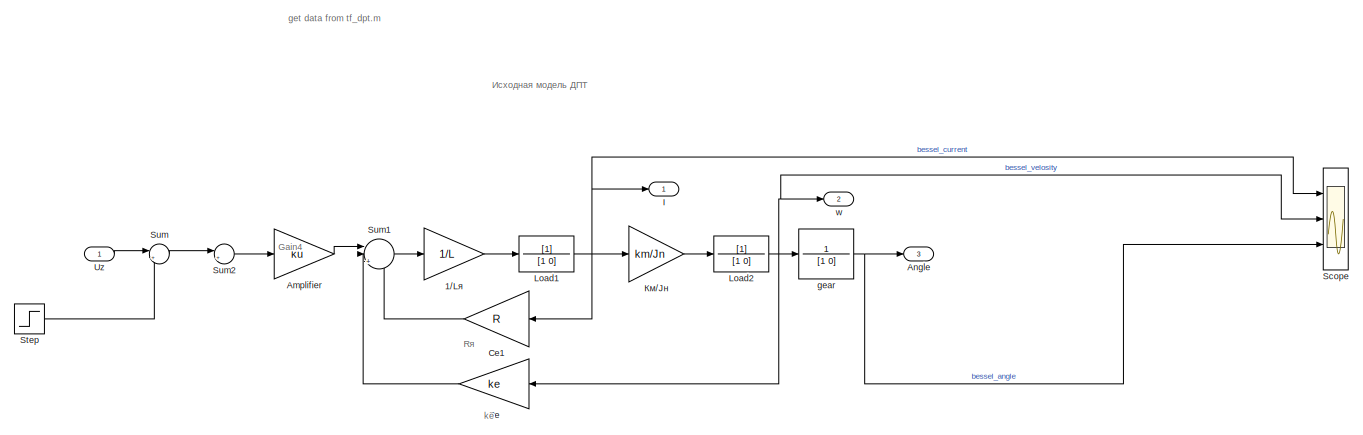
[diagram: root canvas - part 1/5, full width, top band]
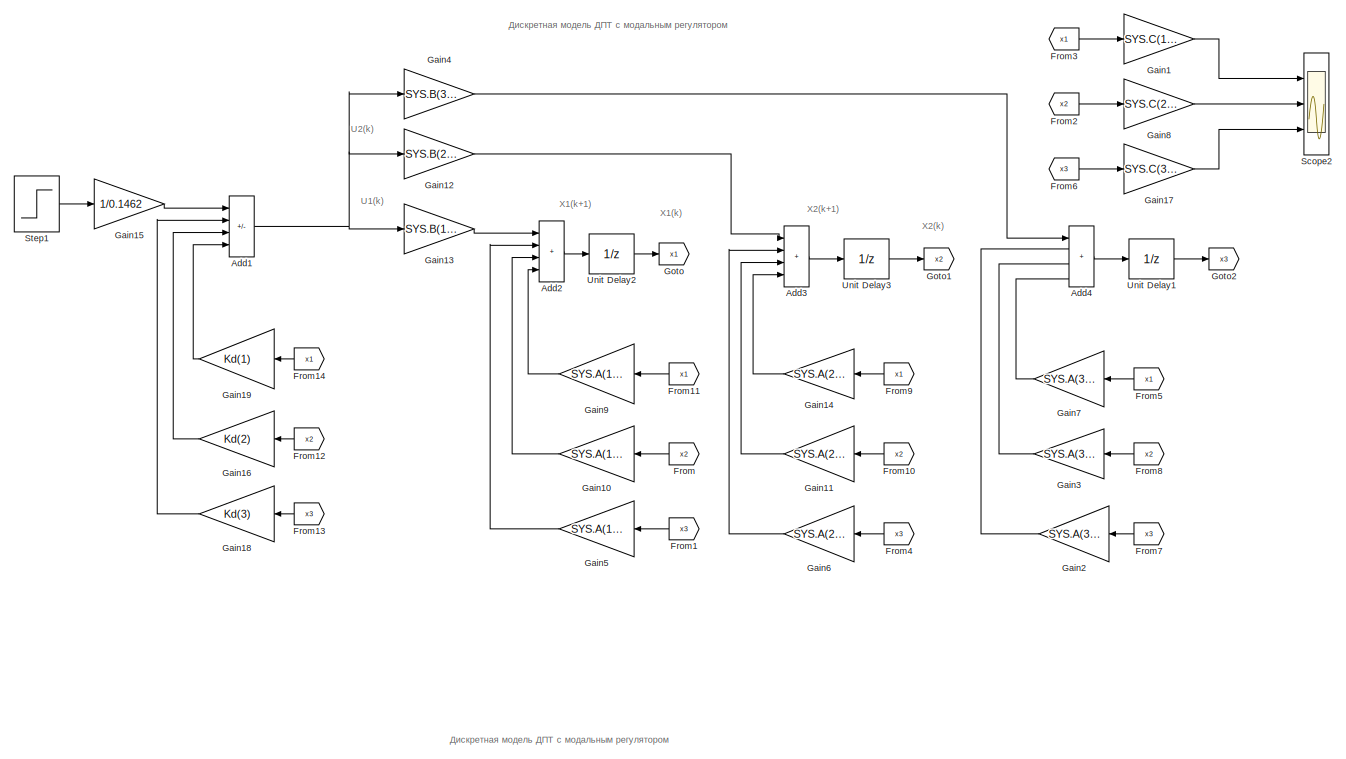
[diagram: root canvas - part 2/5, full width, top band]
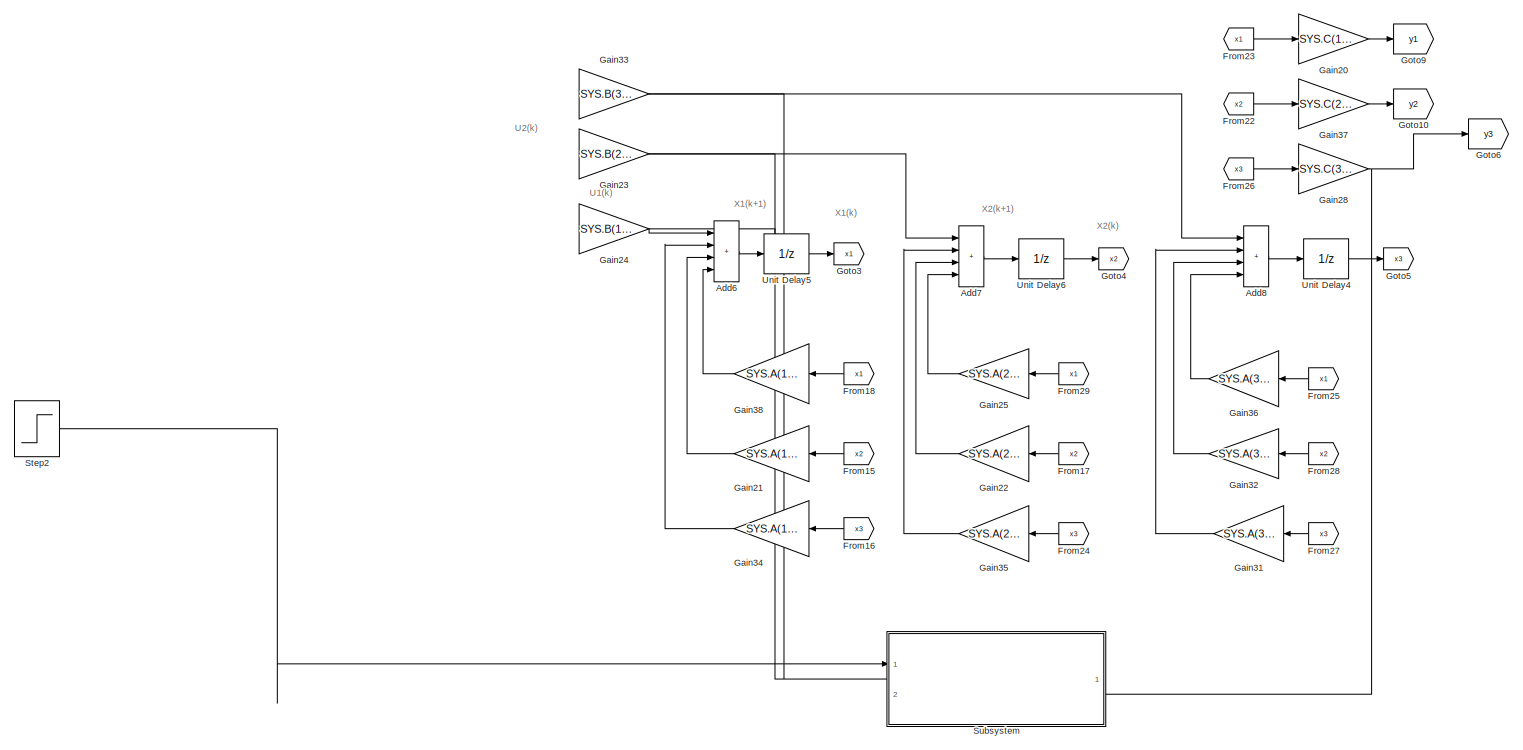
[diagram: root canvas - part 3/5, full width, middle band]
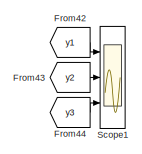
[diagram: root canvas - part 4/5, middle right region]
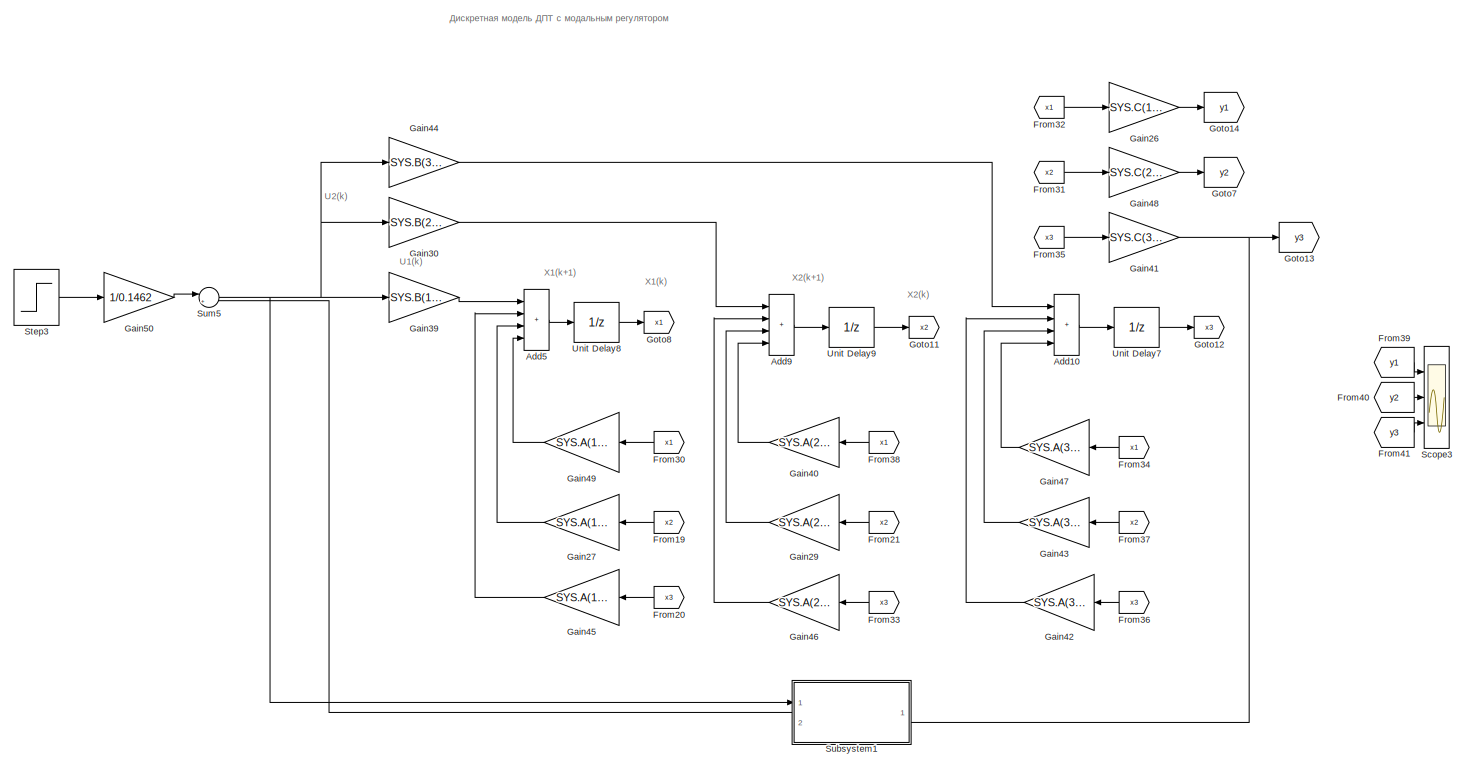
[diagram: root canvas - part 5/5, full width, bottom band]
MODEL slx_e2567f27fadd
KIND model
CONFIG AbsTol = auto
CONFIG EnableMultiTasking = off
CONFIG FixedStep = auto
CONFIG MaxStep = auto
CONFIG MinStep = auto
CONFIG RelTol = 1e-3
CONFIG SampleTimeConstraint = Unconstrained
CONFIG SolverName = VariableStepAuto
CONFIG StartTime = 0.0
CONFIG StopTime = 0.2
BLOCK [Gain] 1//Lя
  Commented = on
  Gain = 1/L
BLOCK [Sum] Add1
  Commented = on
  IconShape = rectangular
  Inputs = +---
  Ports = [4, 1]
BLOCK [Sum] Add10
  IconShape = rectangular
  Inputs = ++++
  Ports = [4, 1]
BLOCK [Sum] Add2
  Commented = on
  IconShape = rectangular
  Inputs = ++++
  Ports = [4, 1]
BLOCK [Sum] Add3
  Commented = on
  IconShape = rectangular
  Inputs = ++++
  Ports = [4, 1]
BLOCK [Sum] Add4
  Commented = on
  IconShape = rectangular
  Inputs = ++++
  Ports = [4, 1]
BLOCK [Sum] Add5
  IconShape = rectangular
  Inputs = ++++
  Ports = [4, 1]
BLOCK [Sum] Add6
  Commented = on
  IconShape = rectangular
  Inputs = ++++
  Ports = [4, 1]
BLOCK [Sum] Add7
  Commented = on
  IconShape = rectangular
  Inputs = ++++
  Ports = [4, 1]
BLOCK [Sum] Add8
  Commented = on
  IconShape = rectangular
  Inputs = ++++
  Ports = [4, 1]
BLOCK [Sum] Add9
  IconShape = rectangular
  Inputs = ++++
  Ports = [4, 1]
BLOCK [Gain] Amplifier
  Commented = on
  Gain = ku
BLOCK [Outport] Angle
  Port = 3
BLOCK [Gain] Ce
  Commented = on
  Gain = ke
BLOCK [Gain] Ce1
  Commented = on
  Gain = R
BLOCK [From] From
  Commented = on
  GotoTag = x2
  NameLocation = top
BLOCK [From] From1
  Commented = on
  GotoTag = x3
  NameLocation = top
BLOCK [From] From10
  Commented = on
  GotoTag = x2
  NameLocation = top
BLOCK [From] From11
  Commented = on
  GotoTag = x1
  NameLocation = top
BLOCK [From] From12
  Commented = on
  GotoTag = x2
  NameLocation = top
BLOCK [From] From13
  Commented = on
  GotoTag = x3
  NameLocation = top
BLOCK [From] From14
  Commented = on
  GotoTag = x1
  NameLocation = top
BLOCK [From] From15
  Commented = on
  GotoTag = x2
  NameLocation = top
BLOCK [From] From16
  Commented = on
  GotoTag = x3
  NameLocation = top
BLOCK [From] From17
  Commented = on
  GotoTag = x2
  NameLocation = top
BLOCK [From] From18
  Commented = on
  GotoTag = x1
  NameLocation = top
BLOCK [From] From19
  GotoTag = x2
  NameLocation = top
BLOCK [From] From2
  Commented = on
  GotoTag = x2
BLOCK [From] From20
  GotoTag = x3
  NameLocation = top
BLOCK [From] From21
  GotoTag = x2
  NameLocation = top
BLOCK [From] From22
  Commented = on
  GotoTag = x2
BLOCK [From] From23
  Commented = on
  GotoTag = x1
BLOCK [From] From24
  Commented = on
  GotoTag = x3
  NameLocation = top
BLOCK [From] From25
  Commented = on
  GotoTag = x1
  NameLocation = top
BLOCK [From] From26
  Commented = on
  GotoTag = x3
BLOCK [From] From27
  Commented = on
  GotoTag = x3
  NameLocation = top
BLOCK [From] From28
  Commented = on
  GotoTag = x2
  NameLocation = top
BLOCK [From] From29
  Commented = on
  GotoTag = x1
  NameLocation = top
BLOCK [From] From3
  Commented = on
  GotoTag = x1
BLOCK [From] From30
  GotoTag = x1
  NameLocation = top
BLOCK [From] From31
  GotoTag = x2
BLOCK [From] From32
  GotoTag = x1
BLOCK [From] From33
  GotoTag = x3
  NameLocation = top
BLOCK [From] From34
  GotoTag = x1
  NameLocation = top
BLOCK [From] From35
  GotoTag = x3
BLOCK [From] From36
  GotoTag = x3
  NameLocation = top
BLOCK [From] From37
  GotoTag = x2
  NameLocation = top
BLOCK [From] From38
  GotoTag = x1
  NameLocation = top
BLOCK [From] From39
  GotoTag = y1
BLOCK [From] From4
  Commented = on
  GotoTag = x3
  NameLocation = top
BLOCK [From] From40
  GotoTag = y2
BLOCK [From] From41
  GotoTag = y3
BLOCK [From] From42
  Commented = on
  GotoTag = y1
BLOCK [From] From43
  Commented = on
  GotoTag = y2
BLOCK [From] From44
  Commented = on
  GotoTag = y3
BLOCK [From] From5
  Commented = on
  GotoTag = x1
  NameLocation = top
BLOCK [From] From6
  Commented = on
  GotoTag = x3
BLOCK [From] From7
  Commented = on
  GotoTag = x3
  NameLocation = top
BLOCK [From] From8
  Commented = on
  GotoTag = x2
  NameLocation = top
BLOCK [From] From9
  Commented = on
  GotoTag = x1
  NameLocation = top
BLOCK [Gain] Gain1
  Commented = on
  Gain = SYS.C(1,1)
BLOCK [Gain] Gain10
  Commented = on
  Gain = SYS.A(1,2)
BLOCK [Gain] Gain11
  Commented = on
  Gain = SYS.A(2,2)
BLOCK [Gain] Gain12
  Commented = on
  Gain = SYS.B(2,1)
BLOCK [Gain] Gain13
  Commented = on
  Gain = SYS.B(1,1)
BLOCK [Gain] Gain14
  Commented = on
  Gain = SYS.A(2,1)
  NameLocation = top
BLOCK [Gain] Gain15
  Commented = on
  Gain = 1/0.1462
BLOCK [Gain] Gain16
  Commented = on
  Gain = Kd(2)
BLOCK [Gain] Gain17
  Commented = on
  Gain = SYS.C(3,3)
BLOCK [Gain] Gain18
  Commented = on
  Gain = Kd(3)
BLOCK [Gain] Gain19
  Commented = on
  Gain = Kd(1)
BLOCK [Gain] Gain2
  Commented = on
  Gain = SYS.A(3,3)
BLOCK [Gain] Gain20
  Commented = on
  Gain = SYS.C(1,1)
BLOCK [Gain] Gain21
  Commented = on
  Gain = SYS.A(1,2)
BLOCK [Gain] Gain22
  Commented = on
  Gain = SYS.A(2,2)
BLOCK [Gain] Gain23
  Commented = on
  Gain = SYS.B(2,1)
BLOCK [Gain] Gain24
  Commented = on
  Gain = SYS.B(1,1)
BLOCK [Gain] Gain25
  Commented = on
  Gain = SYS.A(2,1)
  NameLocation = top
BLOCK [Gain] Gain26
  Gain = SYS.C(1,1)
BLOCK [Gain] Gain27
  Gain = SYS.A(1,2)
BLOCK [Gain] Gain28
  Commented = on
  Gain = SYS.C(3,3)
BLOCK [Gain] Gain29
  Gain = SYS.A(2,2)
BLOCK [Gain] Gain3
  Commented = on
  Gain = SYS.A(3,2)
  NameLocation = top
BLOCK [Gain] Gain30
  Gain = SYS.B(2,1)
BLOCK [Gain] Gain31
  Commented = on
  Gain = SYS.A(3,3)
BLOCK [Gain] Gain32
  Commented = on
  Gain = SYS.A(3,2)
  NameLocation = top
BLOCK [Gain] Gain33
  Commented = on
  Gain = SYS.B(3,1)
BLOCK [Gain] Gain34
  Commented = on
  Gain = SYS.A(1,3)
BLOCK [Gain] Gain35
  Commented = on
  Gain = SYS.A(2,3)
BLOCK [Gain] Gain36
  Commented = on
  Gain = SYS.A(3,1)
BLOCK [Gain] Gain37
  Commented = on
  Gain = SYS.C(2,2)
BLOCK [Gain] Gain38
  Commented = on
  Gain = SYS.A(1,1)
BLOCK [Gain] Gain39
  Gain = SYS.B(1,1)
BLOCK [Gain] Gain4
  Commented = on
  Gain = SYS.B(3,1)
BLOCK [Gain] Gain40
  Gain = SYS.A(2,1)
  NameLocation = top
BLOCK [Gain] Gain41
  Gain = SYS.C(3,3)
BLOCK [Gain] Gain42
  Gain = SYS.A(3,3)
BLOCK [Gain] Gain43
  Gain = SYS.A(3,2)
  NameLocation = top
BLOCK [Gain] Gain44
  Gain = SYS.B(3,1)
BLOCK [Gain] Gain45
  Gain = SYS.A(1,3)
BLOCK [Gain] Gain46
  Gain = SYS.A(2,3)
BLOCK [Gain] Gain47
  Gain = SYS.A(3,1)
BLOCK [Gain] Gain48
  Gain = SYS.C(2,2)
BLOCK [Gain] Gain49
  Gain = SYS.A(1,1)
BLOCK [Gain] Gain5
  Commented = on
  Gain = SYS.A(1,3)
BLOCK [Gain] Gain50
  Gain = 1/0.1462
BLOCK [Gain] Gain6
  Commented = on
  Gain = SYS.A(2,3)
BLOCK [Gain] Gain7
  Commented = on
  Gain = SYS.A(3,1)
BLOCK [Gain] Gain8
  Commented = on
  Gain = SYS.C(2,2)
BLOCK [Gain] Gain9
  Commented = on
  Gain = SYS.A(1,1)
BLOCK [Goto] Goto
  Commented = on
  GotoTag = x1
BLOCK [Goto] Goto1
  Commented = on
  GotoTag = x2
BLOCK [Goto] Goto10
  Commented = on
  GotoTag = y2
BLOCK [Goto] Goto11
  GotoTag = x2
BLOCK [Goto] Goto12
  GotoTag = x3
BLOCK [Goto] Goto13
  GotoTag = y3
BLOCK [Goto] Goto14
  GotoTag = y1
BLOCK [Goto] Goto2
  Commented = on
  GotoTag = x3
BLOCK [Goto] Goto3
  Commented = on
  GotoTag = x1
BLOCK [Goto] Goto4
  Commented = on
  GotoTag = x2
BLOCK [Goto] Goto5
  Commented = on
  GotoTag = x3
BLOCK [Goto] Goto6
  Commented = on
  GotoTag = y3
BLOCK [Goto] Goto7
  GotoTag = y2
BLOCK [Goto] Goto8
  GotoTag = x1
BLOCK [Goto] Goto9
  Commented = on
  GotoTag = y1
BLOCK [Outport] I
BLOCK [TransferFcn] Load1
  Commented = on
  Denominator = [1 0]
BLOCK [TransferFcn] Load2
  Commented = on
  Denominator = [1 0]
BLOCK [Scope] Scope
  Commented = on
  Floating = off
  NumInputPorts = 3
  Ports = [3]
  ScopeSpecificationString = Simulink.scopes.TimeScopeBlockCfg('CurrentConfiguration', extmgr.ConfigurationSet(extmgr.Configuration('Core','General UI',true,'FigureColor',[1 1 1]),extmgr.Configuration('Core','Source UI',true),extmgr.Configuration('Sources','WiredSimulink',true),extmgr.Configuration('Visuals','Time Domain',true,'SerializedDisplays',{struct('MinYLimReal','-0.22842','MaxYLimReal','2.05579','YLabelReal','','MinYL...<+3602ch>
BLOCK [Scope] Scope1
  Commented = on
  Floating = off
  NumInputPorts = 3
  Ports = [3]
  ScopeSpecificationString = Simulink.scopes.TimeScopeBlockCfg('CurrentConfiguration', extmgr.ConfigurationSet(extmgr.Configuration('Core','General UI',true,'FigureColor',[1 1 1]),extmgr.Configuration('Core','Source UI',true),extmgr.Configuration('Sources','WiredSimulink',true,'DataLoggingVariableName','ScopeData1'),extmgr.Configuration('Visuals','Time Domain',true,'SerializedDisplays',{struct('MinYLimReal','-5.29936','MaxYLi...<+3636ch>
BLOCK [Scope] Scope2
  Commented = on
  Floating = off
  NumInputPorts = 3
  Ports = [3]
  ScopeSpecificationString = Simulink.scopes.TimeScopeBlockCfg('CurrentConfiguration', extmgr.ConfigurationSet(extmgr.Configuration('Core','General UI',true,'FigureColor',[1 1 1]),extmgr.Configuration('Core','Source UI',true),extmgr.Configuration('Sources','WiredSimulink',true,'DataLoggingVariableName','ScopeData2'),extmgr.Configuration('Visuals','Time Domain',true,'SerializedDisplays',{struct('MinYLimReal','-5.29936','MaxYLi...<+3634ch>
BLOCK [Scope] Scope3
  Floating = off
  NumInputPorts = 3
  Ports = [3]
  ScopeSpecificationString = Simulink.scopes.TimeScopeBlockCfg('CurrentConfiguration', extmgr.ConfigurationSet(extmgr.Configuration('Core','General UI',true,'FigureColor',[1 1 1]),extmgr.Configuration('Core','Source UI',true),extmgr.Configuration('Sources','WiredSimulink',true,'DataLoggingVariableName','ScopeData2'),extmgr.Configuration('Visuals','Time Domain',true,'SerializedDisplays',{struct('MinYLimReal','-5.29936','MaxYLi...<+3610ch>
BLOCK [Step] Step
  Commented = on
  SampleTime = 0
  Time = 0
BLOCK [Step] Step1
  Commented = on
  SampleTime = 0
  Time = 0
BLOCK [Step] Step2
  Commented = on
  SampleTime = 0
  Time = 0
BLOCK [Step] Step3
  SampleTime = 0
  Time = 0
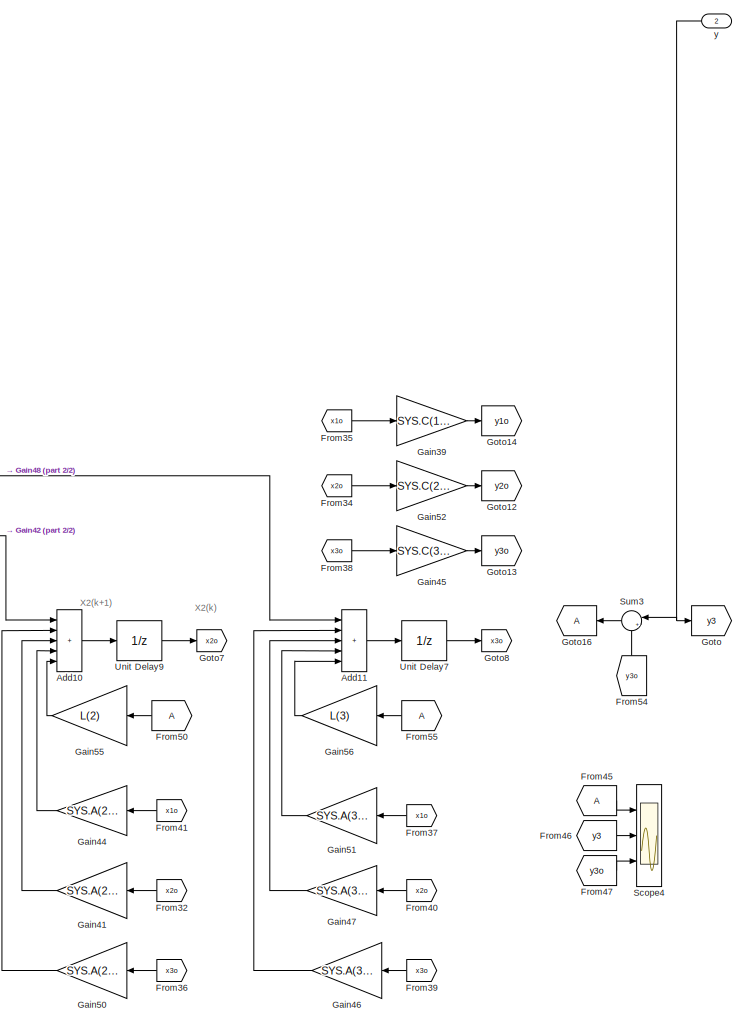
[diagram: Subsystem - part 1/2, right side, full height]
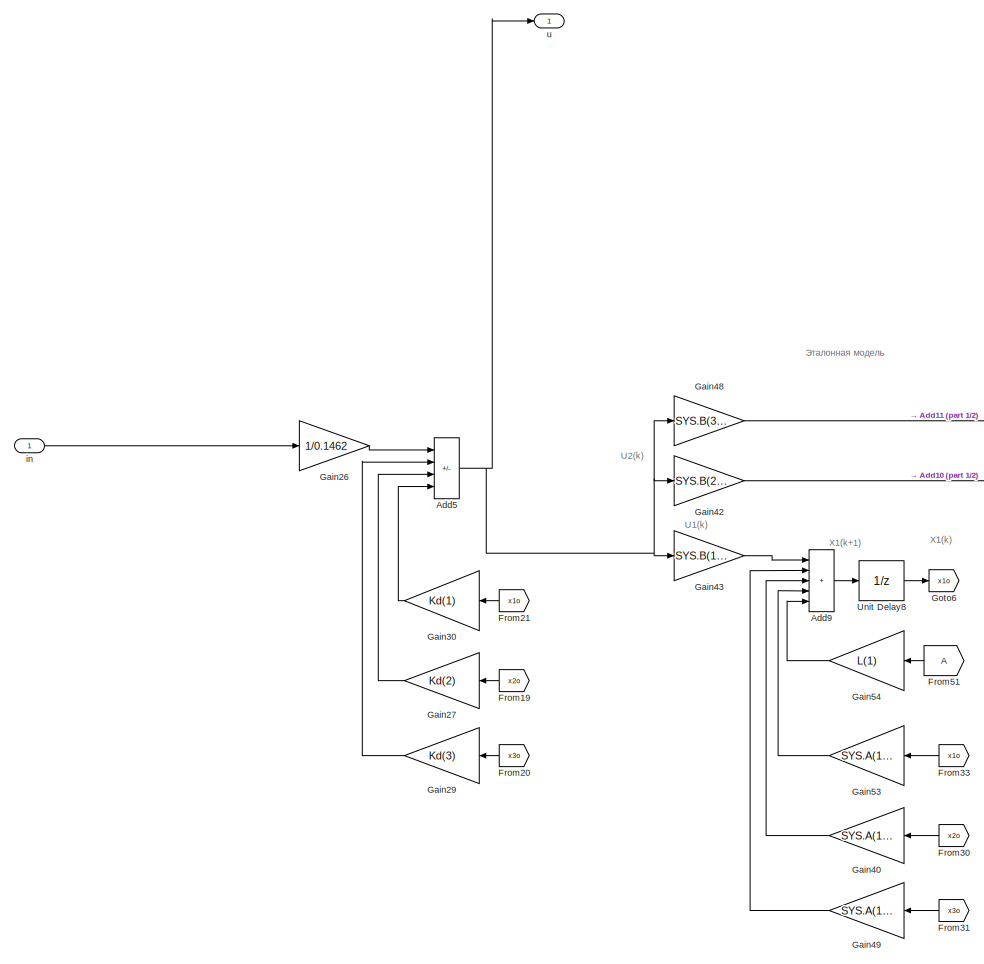
[diagram: Subsystem - part 2/2, left side, full height]
BLOCK [SubSystem] Subsystem
  Commented = on
  PortSchema = {"entries":[{"content":{"sides":[{"content":{"connectorIds":["Out1","In1"]},"type":"ConnectorPlacement.EquallySpacedRectSide","uuid":"1ae5a343-437d-4cb9-9822-e2db9fa7010c"},{"content":{"connectorIds":["In2"],"side":"RIGHT"},"type":"ConnectorPlacement.EquallySpacedRectSide","uuid":"a13fd255-885b-49a4-bdfe-42517e7d2bb6"},{"content":{"connectorIds":[],"side":"TOP"},"type":"ConnectorPlacement.EquallyS...<+246ch>
  Ports = [2, 1]
  RequestExecContextInheritance = off
BLOCK [Sum] Subsystem/Add10
  IconShape = rectangular
  Inputs = +++++
  Ports = [5, 1]
BLOCK [Sum] Subsystem/Add11
  IconShape = rectangular
  Inputs = +++++
  Ports = [5, 1]
BLOCK [Sum] Subsystem/Add5
  IconShape = rectangular
  Inputs = +---
  Ports = [4, 1]
BLOCK [Sum] Subsystem/Add9
  IconShape = rectangular
  Inputs = +++++
  Ports = [5, 1]
BLOCK [From] Subsystem/From19
  GotoTag = x2o
  NameLocation = top
BLOCK [From] Subsystem/From20
  GotoTag = x3o
  NameLocation = top
BLOCK [From] Subsystem/From21
  GotoTag = x1o
  NameLocation = top
BLOCK [From] Subsystem/From30
  GotoTag = x2o
  NameLocation = top
BLOCK [From] Subsystem/From31
  GotoTag = x3o
  NameLocation = top
BLOCK [From] Subsystem/From32
  GotoTag = x2o
  NameLocation = top
BLOCK [From] Subsystem/From33
  GotoTag = x1o
  NameLocation = top
BLOCK [From] Subsystem/From34
  GotoTag = x2o
BLOCK [From] Subsystem/From35
  GotoTag = x1o
BLOCK [From] Subsystem/From36
  GotoTag = x3o
  NameLocation = top
BLOCK [From] Subsystem/From37
  GotoTag = x1o
  NameLocation = top
BLOCK [From] Subsystem/From38
  GotoTag = x3o
BLOCK [From] Subsystem/From39
  GotoTag = x3o
  NameLocation = top
BLOCK [From] Subsystem/From40
  GotoTag = x2o
  NameLocation = top
BLOCK [From] Subsystem/From41
  GotoTag = x1o
  NameLocation = top
BLOCK [From] Subsystem/From45
  NameLocation = top
BLOCK [From] Subsystem/From46
  GotoTag = y3
BLOCK [From] Subsystem/From47
  GotoTag = y3o
BLOCK [From] Subsystem/From50
BLOCK [From] Subsystem/From51
BLOCK [From] Subsystem/From54
  GotoTag = y3o
  NameLocation = right
BLOCK [From] Subsystem/From55
BLOCK [Gain] Subsystem/Gain26
  Gain = 1/0.1462
BLOCK [Gain] Subsystem/Gain27
  Gain = Kd(2)
BLOCK [Gain] Subsystem/Gain29
  Gain = Kd(3)
BLOCK [Gain] Subsystem/Gain30
  Gain = Kd(1)
BLOCK [Gain] Subsystem/Gain39
  Gain = SYS.C(1,1)
BLOCK [Gain] Subsystem/Gain40
  Gain = SYS.A(1,2)
BLOCK [Gain] Subsystem/Gain41
  Gain = SYS.A(2,2)
BLOCK [Gain] Subsystem/Gain42
  Gain = SYS.B(2,1)
BLOCK [Gain] Subsystem/Gain43
  Gain = SYS.B(1,1)
BLOCK [Gain] Subsystem/Gain44
  Gain = SYS.A(2,1)
  NameLocation = top
BLOCK [Gain] Subsystem/Gain45
  Gain = SYS.C(3,3)
BLOCK [Gain] Subsystem/Gain46
  Gain = SYS.A(3,3)
BLOCK [Gain] Subsystem/Gain47
  Gain = SYS.A(3,2)
  NameLocation = top
BLOCK [Gain] Subsystem/Gain48
  Gain = SYS.B(3,1)
BLOCK [Gain] Subsystem/Gain49
  Gain = SYS.A(1,3)
BLOCK [Gain] Subsystem/Gain50
  Gain = SYS.A(2,3)
BLOCK [Gain] Subsystem/Gain51
  Gain = SYS.A(3,1)
BLOCK [Gain] Subsystem/Gain52
  Gain = SYS.C(2,2)
BLOCK [Gain] Subsystem/Gain53
  Gain = SYS.A(1,1)
BLOCK [Gain] Subsystem/Gain54
  Gain = L(1)
BLOCK [Gain] Subsystem/Gain55
  Gain = L(2)
BLOCK [Gain] Subsystem/Gain56
  Gain = L(3)
BLOCK [Goto] Subsystem/Goto
  GotoTag = y3
BLOCK [Goto] Subsystem/Goto12
  GotoTag = y2o
BLOCK [Goto] Subsystem/Goto13
  GotoTag = y3o
BLOCK [Goto] Subsystem/Goto14
  GotoTag = y1o
BLOCK [Goto] Subsystem/Goto16
  NameLocation = top
BLOCK [Goto] Subsystem/Goto6
  GotoTag = x1o
BLOCK [Goto] Subsystem/Goto7
  GotoTag = x2o
BLOCK [Goto] Subsystem/Goto8
  GotoTag = x3o
BLOCK [Scope] Subsystem/Scope4
  Floating = off
  NumInputPorts = 3
  Ports = [3]
  ScopeSpecificationString = Simulink.scopes.TimeScopeBlockCfg('CurrentConfiguration', extmgr.ConfigurationSet(extmgr.Configuration('Core','General UI',true,'FigureColor',[1 1 1]),extmgr.Configuration('Core','Source UI',true),extmgr.Configuration('Sources','WiredSimulink',true,'DataLoggingVariableName','ScopeData1'),extmgr.Configuration('Visuals','Time Domain',true,'SerializedDisplays',{struct('MinYLimReal','-1.00000','MaxYLi...<+3650ch>
BLOCK [Sum] Subsystem/Sum3
  Inputs = |+-
  NameLocation = top
  Ports = [2, 1]
BLOCK [UnitDelay] Subsystem/Unit Delay7
  HasFrameUpgradeWarning = on
  SampleTime = Ts
BLOCK [UnitDelay] Subsystem/Unit Delay8
  HasFrameUpgradeWarning = on
  SampleTime = Ts
BLOCK [UnitDelay] Subsystem/Unit Delay9
  HasFrameUpgradeWarning = on
  SampleTime = Ts
BLOCK [Inport] Subsystem/in
BLOCK [Outport] Subsystem/u
BLOCK [Inport] Subsystem/y
  Port = 2
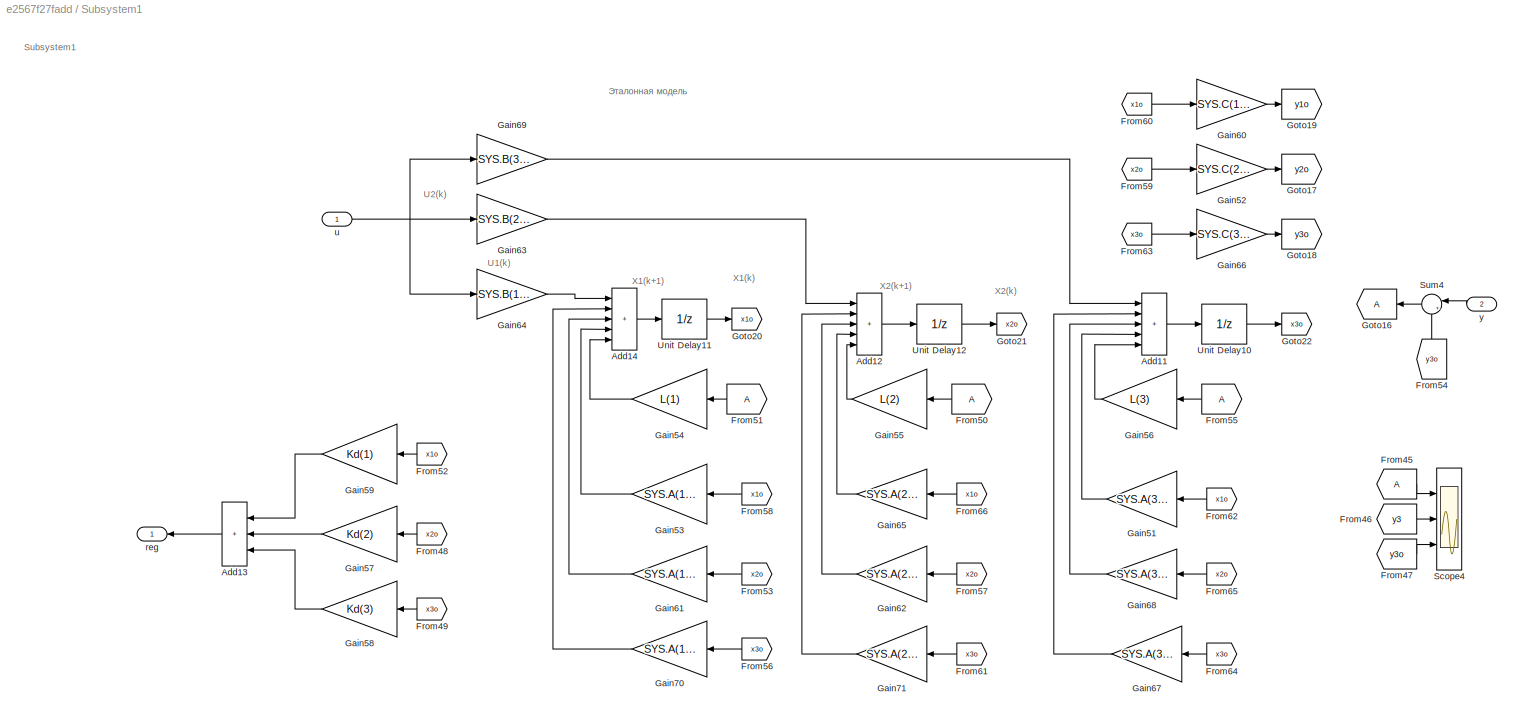
BLOCK [SubSystem] Subsystem1
  PortSchema = {"entries":[{"content":{"sides":[{"content":{"connectorIds":["In1","Out1"]},"type":"ConnectorPlacement.EquallySpacedRectSide","uuid":"1ae5a343-437d-4cb9-9822-e2db9fa7010c"},{"content":{"connectorIds":["In2"],"side":"RIGHT"},"type":"ConnectorPlacement.EquallySpacedRectSide","uuid":"a13fd255-885b-49a4-bdfe-42517e7d2bb6"},{"content":{"connectorIds":[],"side":"TOP"},"type":"ConnectorPlacement.EquallyS...<+246ch>
  Ports = [2, 1]
  RequestExecContextInheritance = off
BLOCK [Sum] Subsystem1/Add11
  IconShape = rectangular
  Inputs = +++++
  Ports = [5, 1]
BLOCK [Sum] Subsystem1/Add12
  IconShape = rectangular
  Inputs = +++++
  Ports = [5, 1]
BLOCK [Sum] Subsystem1/Add13
  IconShape = rectangular
  Inputs = +++
  NameLocation = top
  Ports = [3, 1]
BLOCK [Sum] Subsystem1/Add14
  IconShape = rectangular
  Inputs = +++++
  Ports = [5, 1]
BLOCK [From] Subsystem1/From45
  NameLocation = top
BLOCK [From] Subsystem1/From46
  GotoTag = y3
BLOCK [From] Subsystem1/From47
  GotoTag = y3o
BLOCK [From] Subsystem1/From48
  GotoTag = x2o
  NameLocation = top
BLOCK [From] Subsystem1/From49
  GotoTag = x3o
  NameLocation = top
BLOCK [From] Subsystem1/From50
BLOCK [From] Subsystem1/From51
BLOCK [From] Subsystem1/From52
  GotoTag = x1o
  NameLocation = top
BLOCK [From] Subsystem1/From53
  GotoTag = x2o
  NameLocation = top
BLOCK [From] Subsystem1/From54
  GotoTag = y3o
  NameLocation = right
BLOCK [From] Subsystem1/From55
BLOCK [From] Subsystem1/From56
  GotoTag = x3o
  NameLocation = top
BLOCK [From] Subsystem1/From57
  GotoTag = x2o
  NameLocation = top
BLOCK [From] Subsystem1/From58
  GotoTag = x1o
  NameLocation = top
BLOCK [From] Subsystem1/From59
  GotoTag = x2o
BLOCK [From] Subsystem1/From60
  GotoTag = x1o
BLOCK [From] Subsystem1/From61
  GotoTag = x3o
  NameLocation = top
BLOCK [From] Subsystem1/From62
  GotoTag = x1o
  NameLocation = top
BLOCK [From] Subsystem1/From63
  GotoTag = x3o
BLOCK [From] Subsystem1/From64
  GotoTag = x3o
  NameLocation = top
BLOCK [From] Subsystem1/From65
  GotoTag = x2o
  NameLocation = top
BLOCK [From] Subsystem1/From66
  GotoTag = x1o
  NameLocation = top
BLOCK [Gain] Subsystem1/Gain51
  Gain = SYS.A(3,1)
BLOCK [Gain] Subsystem1/Gain52
  Gain = SYS.C(2,2)
BLOCK [Gain] Subsystem1/Gain53
  Gain = SYS.A(1,1)
BLOCK [Gain] Subsystem1/Gain54
  Gain = L(1)
BLOCK [Gain] Subsystem1/Gain55
  Gain = L(2)
BLOCK [Gain] Subsystem1/Gain56
  Gain = L(3)
BLOCK [Gain] Subsystem1/Gain57
  Gain = Kd(2)
BLOCK [Gain] Subsystem1/Gain58
  Gain = Kd(3)
BLOCK [Gain] Subsystem1/Gain59
  Gain = Kd(1)
BLOCK [Gain] Subsystem1/Gain60
  Gain = SYS.C(1,1)
BLOCK [Gain] Subsystem1/Gain61
  Gain = SYS.A(1,2)
BLOCK [Gain] Subsystem1/Gain62
  Gain = SYS.A(2,2)
BLOCK [Gain] Subsystem1/Gain63
  Gain = SYS.B(2,1)
BLOCK [Gain] Subsystem1/Gain64
  Gain = SYS.B(1,1)
BLOCK [Gain] Subsystem1/Gain65
  Gain = SYS.A(2,1)
  NameLocation = top
BLOCK [Gain] Subsystem1/Gain66
  Gain = SYS.C(3,3)
BLOCK [Gain] Subsystem1/Gain67
  Gain = SYS.A(3,3)
BLOCK [Gain] Subsystem1/Gain68
  Gain = SYS.A(3,2)
  NameLocation = top
BLOCK [Gain] Subsystem1/Gain69
  Gain = SYS.B(3,1)
BLOCK [Gain] Subsystem1/Gain70
  Gain = SYS.A(1,3)
BLOCK [Gain] Subsystem1/Gain71
  Gain = SYS.A(2,3)
BLOCK [Goto] Subsystem1/Goto16
  NameLocation = top
BLOCK [Goto] Subsystem1/Goto17
  GotoTag = y2o
BLOCK [Goto] Subsystem1/Goto18
  GotoTag = y3o
BLOCK [Goto] Subsystem1/Goto19
  GotoTag = y1o
BLOCK [Goto] Subsystem1/Goto20
  GotoTag = x1o
BLOCK [Goto] Subsystem1/Goto21
  GotoTag = x2o
BLOCK [Goto] Subsystem1/Goto22
  GotoTag = x3o
BLOCK [Scope] Subsystem1/Scope4
  Floating = off
  NumInputPorts = 3
  Ports = [3]
  ScopeSpecificationString = Simulink.scopes.TimeScopeBlockCfg('CurrentConfiguration', extmgr.ConfigurationSet(extmgr.Configuration('Core','General UI',true,'FigureColor',[1 1 1]),extmgr.Configuration('Core','Source UI',true),extmgr.Configuration('Sources','WiredSimulink',true,'DataLoggingVariableName','ScopeData1'),extmgr.Configuration('Visuals','Time Domain',true,'SerializedDisplays',{struct('MinYLimReal','-1.00000','MaxYLi...<+3650ch>
BLOCK [Sum] Subsystem1/Sum4
  Inputs = |+-
  NameLocation = top
  Ports = [2, 1]
BLOCK [UnitDelay] Subsystem1/Unit Delay10
  HasFrameUpgradeWarning = on
  SampleTime = Ts
BLOCK [UnitDelay] Subsystem1/Unit Delay11
  HasFrameUpgradeWarning = on
  SampleTime = Ts
BLOCK [UnitDelay] Subsystem1/Unit Delay12
  HasFrameUpgradeWarning = on
  SampleTime = Ts
BLOCK [Outport] Subsystem1/reg
  NameLocation = top
BLOCK [Inport] Subsystem1/u
BLOCK [Inport] Subsystem1/y
  NameLocation = top
  Port = 2
BLOCK [Sum] Sum
  Commented = on
  Inputs = |++
  Ports = [2, 1]
BLOCK [Sum] Sum1
  Commented = on
  Inputs = ||+--
  Ports = [3, 1]
BLOCK [Sum] Sum2
  Commented = on
  Inputs = |+-
  Ports = [2, 1]
BLOCK [Sum] Sum5
  Inputs = |+-
  Ports = [2, 1]
BLOCK [UnitDelay] Unit Delay1
  Commented = on
  HasFrameUpgradeWarning = on
  SampleTime = Ts
BLOCK [UnitDelay] Unit Delay2
  Commented = on
  HasFrameUpgradeWarning = on
  SampleTime = Ts
BLOCK [UnitDelay] Unit Delay3
  Commented = on
  HasFrameUpgradeWarning = on
  SampleTime = Ts
BLOCK [UnitDelay] Unit Delay4
  Commented = on
  HasFrameUpgradeWarning = on
  SampleTime = Ts
BLOCK [UnitDelay] Unit Delay5
  Commented = on
  HasFrameUpgradeWarning = on
  SampleTime = Ts
BLOCK [UnitDelay] Unit Delay6
  Commented = on
  HasFrameUpgradeWarning = on
  SampleTime = Ts
BLOCK [UnitDelay] Unit Delay7
  HasFrameUpgradeWarning = on
  SampleTime = Ts
BLOCK [UnitDelay] Unit Delay8
  HasFrameUpgradeWarning = on
  SampleTime = Ts
BLOCK [UnitDelay] Unit Delay9
  HasFrameUpgradeWarning = on
  SampleTime = Ts
BLOCK [Inport] Uz
BLOCK [TransferFcn] gear
  Commented = on
  Denominator = [1 0]
  Numerator = 1
BLOCK [Outport] w
  Port = 2
BLOCK [Gain] Км//Jн
  Commented = on
  Gain = km/Jn
ANNOTATION (root): Rя
ANNOTATION (root): Дискретная модель ДПТ с модальным регулятором
ANNOTATION (root): Исходная модель ДПТ
ANNOTATION (root): Gain4
ANNOTATION (root): kе
ANNOTATION (root): U1(k)
ANNOTATION (root): U2(k)
ANNOTATION (root): X1(k)
ANNOTATION (root): X1(k+1)
ANNOTATION (root): X2(k)
ANNOTATION (root): X2(k+1)
ANNOTATION (root): get data from tf_dpt.m
ANNOTATION Subsystem: Эталонная модель
ANNOTATION Subsystem: U1(k)
ANNOTATION Subsystem: U2(k)
ANNOTATION Subsystem: X1(k)
ANNOTATION Subsystem: X1(k+1)
ANNOTATION Subsystem: X2(k)
ANNOTATION Subsystem: X2(k+1)
ANNOTATION Subsystem1: Эталонная модель
ANNOTATION Subsystem1: Subsystem1
ANNOTATION Subsystem1: U1(k)
ANNOTATION Subsystem1: U2(k)
ANNOTATION Subsystem1: X1(k)
ANNOTATION Subsystem1: X1(k+1)
ANNOTATION Subsystem1: X2(k)
ANNOTATION Subsystem1: X2(k+1)
LINE 1//Lя:1 -> Load1:1
LINE Add10:1 -> Unit Delay7:1
NET Add1:1 -> Gain12:1, Gain13:1, Gain4:1
LINE Add2:1 -> Unit Delay2:1
LINE Add3:1 -> Unit Delay3:1
LINE Add4:1 -> Unit Delay1:1
LINE Add5:1 -> Unit Delay8:1
LINE Add6:1 -> Unit Delay5:1
LINE Add7:1 -> Unit Delay6:1
LINE Add8:1 -> Unit Delay4:1
LINE Add9:1 -> Unit Delay9:1
LINE Amplifier:1 -> Sum1:1
LINE Ce1:1 -> Sum1:3
LINE Ce:1 -> Sum1:2
LINE From10:1 -> Gain11:1
LINE From11:1 -> Gain9:1
LINE From12:1 -> Gain16:1
LINE From13:1 -> Gain18:1
LINE From14:1 -> Gain19:1
LINE From15:1 -> Gain21:1
LINE From16:1 -> Gain34:1
LINE From17:1 -> Gain22:1
LINE From18:1 -> Gain38:1
LINE From19:1 -> Gain27:1
LINE From1:1 -> Gain5:1
LINE From20:1 -> Gain45:1
LINE From21:1 -> Gain29:1
LINE From22:1 -> Gain37:1
LINE From23:1 -> Gain20:1
LINE From24:1 -> Gain35:1
LINE From25:1 -> Gain36:1
LINE From26:1 -> Gain28:1
LINE From27:1 -> Gain31:1
LINE From28:1 -> Gain32:1
LINE From29:1 -> Gain25:1
LINE From2:1 -> Gain8:1
LINE From30:1 -> Gain49:1
LINE From31:1 -> Gain48:1
LINE From32:1 -> Gain26:1
LINE From33:1 -> Gain46:1
LINE From34:1 -> Gain47:1
LINE From35:1 -> Gain41:1
LINE From36:1 -> Gain42:1
LINE From37:1 -> Gain43:1
LINE From38:1 -> Gain40:1
LINE From39:1 -> Scope3:1
LINE From3:1 -> Gain1:1
LINE From40:1 -> Scope3:2
LINE From41:1 -> Scope3:3
LINE From42:1 -> Scope1:1
LINE From43:1 -> Scope1:2
LINE From44:1 -> Scope1:3
LINE From4:1 -> Gain6:1
LINE From5:1 -> Gain7:1
LINE From6:1 -> Gain17:1
LINE From7:1 -> Gain2:1
LINE From8:1 -> Gain3:1
LINE From9:1 -> Gain14:1
LINE From:1 -> Gain10:1
LINE Gain10:1 -> Add2:3
LINE Gain11:1 -> Add3:3
LINE Gain12:1 -> Add3:1
LINE Gain13:1 -> Add2:1
LINE Gain14:1 -> Add3:4
LINE Gain15:1 -> Add1:1
LINE Gain16:1 -> Add1:3
LINE Gain17:1 -> Scope2:3
LINE Gain18:1 -> Add1:2
LINE Gain19:1 -> Add1:4
LINE Gain1:1 -> Scope2:1
LINE Gain20:1 -> Goto9:1
LINE Gain21:1 -> Add6:3
LINE Gain22:1 -> Add7:3
LINE Gain23:1 -> Add7:1
LINE Gain24:1 -> Add6:1
LINE Gain25:1 -> Add7:4
LINE Gain26:1 -> Goto14:1
LINE Gain27:1 -> Add5:3
NET Gain28:1 -> Goto6:1, Subsystem:2
LINE Gain29:1 -> Add9:3
LINE Gain2:1 -> Add4:2
LINE Gain30:1 -> Add9:1
LINE Gain31:1 -> Add8:2
LINE Gain32:1 -> Add8:3
LINE Gain33:1 -> Add8:1
LINE Gain34:1 -> Add6:2
LINE Gain35:1 -> Add7:2
LINE Gain36:1 -> Add8:4
LINE Gain37:1 -> Goto10:1
LINE Gain38:1 -> Add6:4
LINE Gain39:1 -> Add5:1
LINE Gain3:1 -> Add4:3
LINE Gain40:1 -> Add9:4
NET Gain41:1 -> Goto13:1, Subsystem1:2
LINE Gain42:1 -> Add10:2
LINE Gain43:1 -> Add10:3
LINE Gain44:1 -> Add10:1
LINE Gain45:1 -> Add5:2
LINE Gain46:1 -> Add9:2
LINE Gain47:1 -> Add10:4
LINE Gain48:1 -> Goto7:1
LINE Gain49:1 -> Add5:4
LINE Gain4:1 -> Add4:1
LINE Gain50:1 -> Sum5:1
LINE Gain5:1 -> Add2:2
LINE Gain6:1 -> Add3:2
LINE Gain7:1 -> Add4:4
LINE Gain8:1 -> Scope2:2
LINE Gain9:1 -> Add2:4
NET Load1:1 -> Ce1:1, I:1, Scope:1, Км//Jн:1
NET Load2:1 -> Ce:1, Scope:2, gear:1, w:1
LINE Step1:1 -> Gain15:1
LINE Step2:1 -> Subsystem:1
LINE Step3:1 -> Gain50:1
LINE Step:1 -> Sum:2
LINE Subsystem/Add10:1 -> Subsystem/Unit Delay9:1
LINE Subsystem/Add11:1 -> Subsystem/Unit Delay7:1
NET Subsystem/Add5:1 -> Subsystem/Gain42:1, Subsystem/Gain43:1, Subsystem/Gain48:1, Subsystem/u:1
LINE Subsystem/Add9:1 -> Subsystem/Unit Delay8:1
LINE Subsystem/From19:1 -> Subsystem/Gain27:1
LINE Subsystem/From20:1 -> Subsystem/Gain29:1
LINE Subsystem/From21:1 -> Subsystem/Gain30:1
LINE Subsystem/From30:1 -> Subsystem/Gain40:1
LINE Subsystem/From31:1 -> Subsystem/Gain49:1
LINE Subsystem/From32:1 -> Subsystem/Gain41:1
LINE Subsystem/From33:1 -> Subsystem/Gain53:1
LINE Subsystem/From34:1 -> Subsystem/Gain52:1
LINE Subsystem/From35:1 -> Subsystem/Gain39:1
LINE Subsystem/From36:1 -> Subsystem/Gain50:1
LINE Subsystem/From37:1 -> Subsystem/Gain51:1
LINE Subsystem/From38:1 -> Subsystem/Gain45:1
LINE Subsystem/From39:1 -> Subsystem/Gain46:1
LINE Subsystem/From40:1 -> Subsystem/Gain47:1
LINE Subsystem/From41:1 -> Subsystem/Gain44:1
LINE Subsystem/From45:1 -> Subsystem/Scope4:1
LINE Subsystem/From46:1 -> Subsystem/Scope4:2
LINE Subsystem/From47:1 -> Subsystem/Scope4:3
LINE Subsystem/From50:1 -> Subsystem/Gain55:1
LINE Subsystem/From51:1 -> Subsystem/Gain54:1
LINE Subsystem/From54:1 -> Subsystem/Sum3:2
LINE Subsystem/From55:1 -> Subsystem/Gain56:1
LINE Subsystem/Gain26:1 -> Subsystem/Add5:1
LINE Subsystem/Gain27:1 -> Subsystem/Add5:3
LINE Subsystem/Gain29:1 -> Subsystem/Add5:2
LINE Subsystem/Gain30:1 -> Subsystem/Add5:4
LINE Subsystem/Gain39:1 -> Subsystem/Goto14:1
LINE Subsystem/Gain40:1 -> Subsystem/Add9:3
LINE Subsystem/Gain41:1 -> Subsystem/Add10:3
LINE Subsystem/Gain42:1 -> Subsystem/Add10:1
LINE Subsystem/Gain43:1 -> Subsystem/Add9:1
LINE Subsystem/Gain44:1 -> Subsystem/Add10:4
LINE Subsystem/Gain45:1 -> Subsystem/Goto13:1
LINE Subsystem/Gain46:1 -> Subsystem/Add11:2
LINE Subsystem/Gain47:1 -> Subsystem/Add11:3
LINE Subsystem/Gain48:1 -> Subsystem/Add11:1
LINE Subsystem/Gain49:1 -> Subsystem/Add9:2
LINE Subsystem/Gain50:1 -> Subsystem/Add10:2
LINE Subsystem/Gain51:1 -> Subsystem/Add11:4
LINE Subsystem/Gain52:1 -> Subsystem/Goto12:1
LINE Subsystem/Gain53:1 -> Subsystem/Add9:4
LINE Subsystem/Gain54:1 -> Subsystem/Add9:5
LINE Subsystem/Gain55:1 -> Subsystem/Add10:5
LINE Subsystem/Gain56:1 -> Subsystem/Add11:5
LINE Subsystem/Sum3:1 -> Subsystem/Goto16:1
LINE Subsystem/Unit Delay7:1 -> Subsystem/Goto8:1
LINE Subsystem/Unit Delay8:1 -> Subsystem/Goto6:1
LINE Subsystem/Unit Delay9:1 -> Subsystem/Goto7:1
LINE Subsystem/in:1 -> Subsystem/Gain26:1
NET Subsystem/y:1 -> Subsystem/Goto:1, Subsystem/Sum3:1
LINE Subsystem1/Add11:1 -> Subsystem1/Unit Delay10:1
LINE Subsystem1/Add12:1 -> Subsystem1/Unit Delay12:1
LINE Subsystem1/Add13:1 -> Subsystem1/reg:1
LINE Subsystem1/Add14:1 -> Subsystem1/Unit Delay11:1
LINE Subsystem1/From45:1 -> Subsystem1/Scope4:1
LINE Subsystem1/From46:1 -> Subsystem1/Scope4:2
LINE Subsystem1/From47:1 -> Subsystem1/Scope4:3
LINE Subsystem1/From48:1 -> Subsystem1/Gain57:1
LINE Subsystem1/From49:1 -> Subsystem1/Gain58:1
LINE Subsystem1/From50:1 -> Subsystem1/Gain55:1
LINE Subsystem1/From51:1 -> Subsystem1/Gain54:1
LINE Subsystem1/From52:1 -> Subsystem1/Gain59:1
LINE Subsystem1/From53:1 -> Subsystem1/Gain61:1
LINE Subsystem1/From54:1 -> Subsystem1/Sum4:2
LINE Subsystem1/From55:1 -> Subsystem1/Gain56:1
LINE Subsystem1/From56:1 -> Subsystem1/Gain70:1
LINE Subsystem1/From57:1 -> Subsystem1/Gain62:1
LINE Subsystem1/From58:1 -> Subsystem1/Gain53:1
LINE Subsystem1/From59:1 -> Subsystem1/Gain52:1
LINE Subsystem1/From60:1 -> Subsystem1/Gain60:1
LINE Subsystem1/From61:1 -> Subsystem1/Gain71:1
LINE Subsystem1/From62:1 -> Subsystem1/Gain51:1
LINE Subsystem1/From63:1 -> Subsystem1/Gain66:1
LINE Subsystem1/From64:1 -> Subsystem1/Gain67:1
LINE Subsystem1/From65:1 -> Subsystem1/Gain68:1
LINE Subsystem1/From66:1 -> Subsystem1/Gain65:1
LINE Subsystem1/Gain51:1 -> Subsystem1/Add11:4
LINE Subsystem1/Gain52:1 -> Subsystem1/Goto17:1
LINE Subsystem1/Gain53:1 -> Subsystem1/Add14:4
LINE Subsystem1/Gain54:1 -> Subsystem1/Add14:5
LINE Subsystem1/Gain55:1 -> Subsystem1/Add12:5
LINE Subsystem1/Gain56:1 -> Subsystem1/Add11:5
LINE Subsystem1/Gain57:1 -> Subsystem1/Add13:2
LINE Subsystem1/Gain58:1 -> Subsystem1/Add13:3
LINE Subsystem1/Gain59:1 -> Subsystem1/Add13:1
LINE Subsystem1/Gain60:1 -> Subsystem1/Goto19:1
LINE Subsystem1/Gain61:1 -> Subsystem1/Add14:3
LINE Subsystem1/Gain62:1 -> Subsystem1/Add12:3
LINE Subsystem1/Gain63:1 -> Subsystem1/Add12:1
LINE Subsystem1/Gain64:1 -> Subsystem1/Add14:1
LINE Subsystem1/Gain65:1 -> Subsystem1/Add12:4
LINE Subsystem1/Gain66:1 -> Subsystem1/Goto18:1
LINE Subsystem1/Gain67:1 -> Subsystem1/Add11:2
LINE Subsystem1/Gain68:1 -> Subsystem1/Add11:3
LINE Subsystem1/Gain69:1 -> Subsystem1/Add11:1
LINE Subsystem1/Gain70:1 -> Subsystem1/Add14:2
LINE Subsystem1/Gain71:1 -> Subsystem1/Add12:2
LINE Subsystem1/Sum4:1 -> Subsystem1/Goto16:1
LINE Subsystem1/Unit Delay10:1 -> Subsystem1/Goto22:1
LINE Subsystem1/Unit Delay11:1 -> Subsystem1/Goto20:1
LINE Subsystem1/Unit Delay12:1 -> Subsystem1/Goto21:1
NET Subsystem1/u:1 -> Subsystem1/Gain63:1, Subsystem1/Gain64:1, Subsystem1/Gain69:1
LINE Subsystem1/y:1 -> Subsystem1/Sum4:1
LINE Subsystem1:1 -> Sum5:2
NET Subsystem:1 -> Gain23:1, Gain24:1, Gain33:1
LINE Sum1:1 -> 1//Lя:1
LINE Sum2:1 -> Amplifier:1
NET Sum5:1 -> Gain30:1, Gain39:1, Gain44:1, Subsystem1:1
LINE Sum:1 -> Sum2:1
LINE Unit Delay1:1 -> Goto2:1
LINE Unit Delay2:1 -> Goto:1
LINE Unit Delay3:1 -> Goto1:1
LINE Unit Delay4:1 -> Goto5:1
LINE Unit Delay5:1 -> Goto3:1
LINE Unit Delay6:1 -> Goto4:1
LINE Unit Delay7:1 -> Goto12:1
LINE Unit Delay8:1 -> Goto8:1
LINE Unit Delay9:1 -> Goto11:1
LINE Uz:1 -> Sum:1
NET gear:1 -> Angle:1, Scope:3
LINE Км//Jн:1 -> Load2:1
note: NET lines group one-source signal fan-out (src -> all destinations, sorted); 1:1 wires keep LINE
